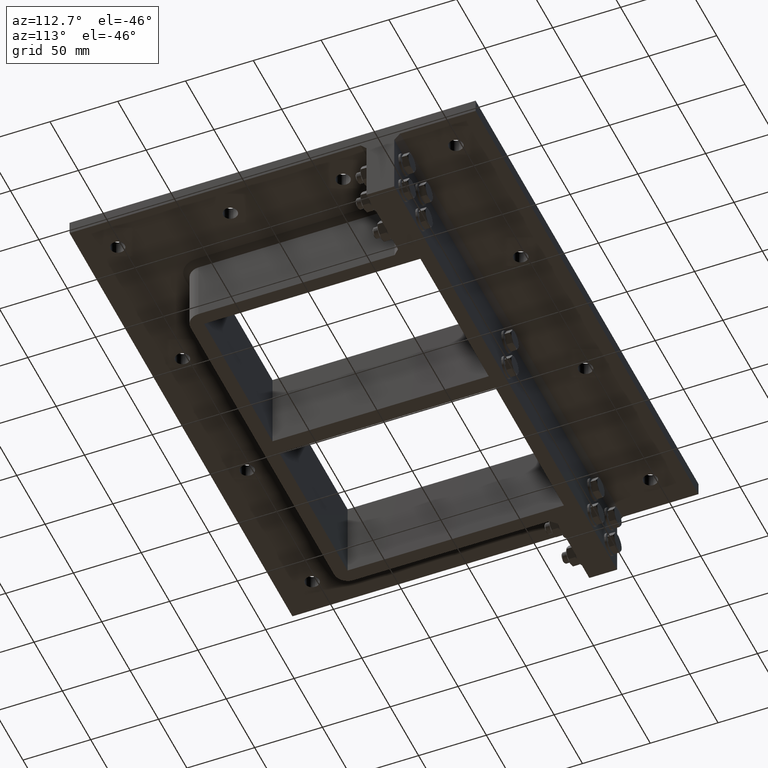
[diagram: clean part render]
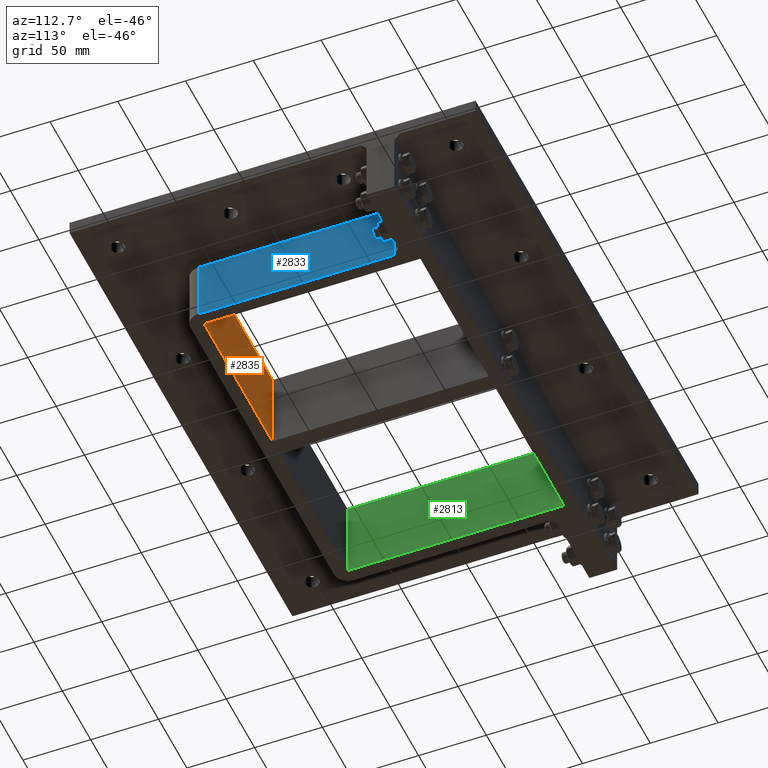
[diagram: same view with three faces highlighted in distinct colors, each labeled with its STEP entity id]
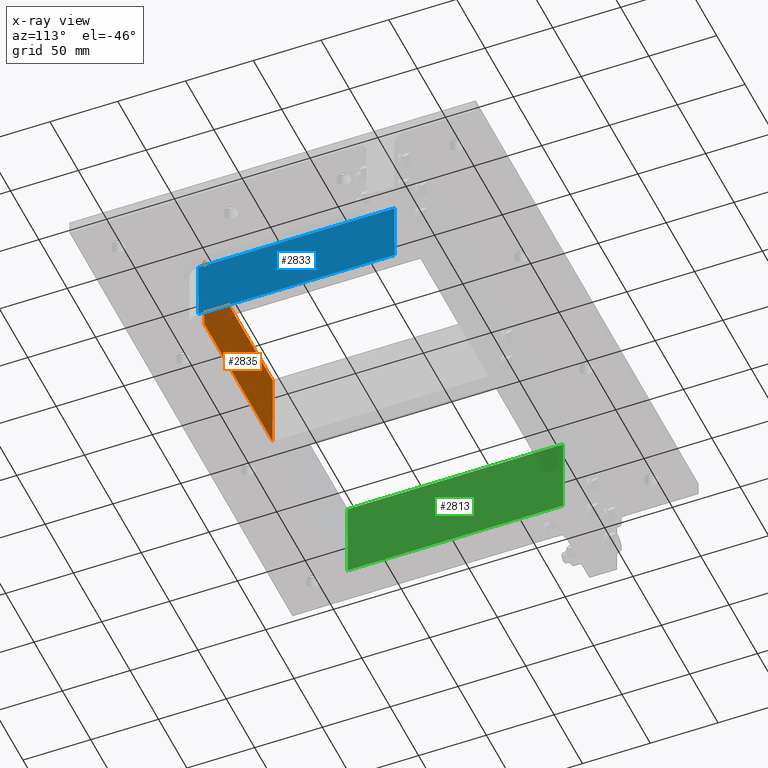
[diagram: x-ray of the same camera — body ghosted, the three highlighted faces saturated]
A machine part, auxiliary view with three faces highlighted in distinct colors.
The next image is the same camera in x-ray (body ghosted, the three faces saturated) — at least one of them is partly hidden behind the body in this view.
Their STEP definitions:

[orange] entity #2835 — the highlighted planar face has unit normal (0, -1, 0).
#506=FACE_OUTER_BOUND('',#699,.T.);
#699=EDGE_LOOP('',(#2195,#2196,#2197,#2198));
#929=LINE('',#4527,#1150);
#939=LINE('',#4548,#1160);
#945=LINE('',#4574,#1166);
#961=LINE('',#4607,#1182);
#1150=VECTOR('',#3667,10.);
#1160=VECTOR('',#3683,10.);
#1166=VECTOR('',#3707,10.);
#1182=VECTOR('',#3757,10.);
#1377=VERTEX_POINT('',#4524);
#1378=VERTEX_POINT('',#4526);
#1385=VERTEX_POINT('',#4545);
#1386=VERTEX_POINT('',#4547);
#1650=EDGE_CURVE('',#1377,#1378,#929,.T.);
#1662=EDGE_CURVE('',#1385,#1386,#939,.T.);
#1676=EDGE_CURVE('',#1385,#1378,#945,.T.);
#1692=EDGE_CURVE('',#1386,#1377,#961,.T.);
#2195=ORIENTED_EDGE('',*,*,#1650,.F.);
#2196=ORIENTED_EDGE('',*,*,#1692,.F.);
#2197=ORIENTED_EDGE('',*,*,#1662,.F.);
#2198=ORIENTED_EDGE('',*,*,#1676,.T.);
#2726=PLANE('',#3252);
#2835=ADVANCED_FACE('',(#506),#2726,.F.);
#3252=AXIS2_PLACEMENT_3D('',#4606,#3755,#3756);
#3667=DIRECTION('',(1.,1.47415505344419E-16,0.));
#3683=DIRECTION('',(-1.,-1.47415505344419E-16,0.));
#3707=DIRECTION('',(0.,0.,-1.));
#3755=DIRECTION('center_axis',(1.47415505344419E-16,-1.,0.));
#3756=DIRECTION('ref_axis',(-1.,-1.47415505344419E-16,0.));
#3757=DIRECTION('',(0.,0.,-1.));
#4524=CARTESIAN_POINT('',(6.00000000000001,-79.75,-60.));
#4526=CARTESIAN_POINT('',(126.5,-79.75,-60.));
#4527=CARTESIAN_POINT('',(63.25,-79.75,-60.));
#4545=CARTESIAN_POINT('',(126.5,-79.75,0.));
#4547=CARTESIAN_POINT('',(6.00000000000001,-79.75,0.));
#4548=CARTESIAN_POINT('',(63.25,-79.75,0.));
#4574=CARTESIAN_POINT('',(126.5,-79.75,0.));
#4606=CARTESIAN_POINT('Origin',(126.5,-79.75,0.));
#4607=CARTESIAN_POINT('',(6.00000000000001,-79.75,0.));

[blue] entity #2833 — the highlighted planar face has unit normal (1, 0, 0).
#504=FACE_OUTER_BOUND('',#697,.T.);
#697=EDGE_LOOP('',(#2187,#2188,#2189,#2190));
#879=LINE('',#4361,#1100);
#890=LINE('',#4389,#1111);
#932=LINE('',#4532,#1153);
#959=LINE('',#4603,#1180);
#1100=VECTOR('',#3503,10.);
#1111=VECTOR('',#3532,10.);
#1153=VECTOR('',#3670,10.);
#1180=VECTOR('',#3751,10.);
#1317=VERTEX_POINT('',#4354);
#1319=VERTEX_POINT('',#4359);
#1326=VERTEX_POINT('',#4385);
#1380=VERTEX_POINT('',#4531);
#1568=EDGE_CURVE('',#1319,#1317,#879,.T.);
#1583=EDGE_CURVE('',#1317,#1326,#890,.T.);
#1653=EDGE_CURVE('',#1326,#1380,#932,.T.);
#1690=EDGE_CURVE('',#1319,#1380,#959,.T.);
#2187=ORIENTED_EDGE('',*,*,#1568,.F.);
#2188=ORIENTED_EDGE('',*,*,#1690,.T.);
#2189=ORIENTED_EDGE('',*,*,#1653,.F.);
#2190=ORIENTED_EDGE('',*,*,#1583,.F.);
#2725=PLANE('',#3250);
#2833=ADVANCED_FACE('',(#504),#2725,.T.);
#3250=AXIS2_PLACEMENT_3D('',#4602,#3749,#3750);
#3503=DIRECTION('',(0.,1.,0.));
#3532=DIRECTION('',(0.,0.,-1.));
#3670=DIRECTION('',(0.,-1.,0.));
#3749=DIRECTION('center_axis',(1.,0.,0.));
#3750=DIRECTION('ref_axis',(0.,-1.,0.));
#3751=DIRECTION('',(0.,0.,-1.));
#4354=CARTESIAN_POINT('',(136.5,64.95,-14.3));
#4359=CARTESIAN_POINT('',(136.5,-79.75,-14.3));
#4361=CARTESIAN_POINT('',(136.5,39.875,-14.3));
#4385=CARTESIAN_POINT('',(136.5,64.95,-60.));
#4389=CARTESIAN_POINT('',(136.5,64.95,0.));
#4531=CARTESIAN_POINT('',(136.5,-79.75,-60.));
#4532=CARTESIAN_POINT('',(136.5,-79.75,-60.));
#4602=CARTESIAN_POINT('Origin',(136.5,79.75,0.));
#4603=CARTESIAN_POINT('',(136.5,-79.75,0.));

[green] entity #2813 — the highlighted planar face has unit normal (-1, -0, 0).
#484=FACE_OUTER_BOUND('',#659,.T.);
#659=EDGE_LOOP('',(#2059,#2060,#2061,#2062));
#913=LINE('',#4495,#1134);
#914=LINE('',#4497,#1135);
#915=LINE('',#4499,#1136);
#916=LINE('',#4500,#1137);
#1134=VECTOR('',#3645,10.);
#1135=VECTOR('',#3646,10.);
#1136=VECTOR('',#3647,10.);
#1137=VECTOR('',#3648,10.);
#1364=VERTEX_POINT('',#4493);
#1365=VERTEX_POINT('',#4494);
#1366=VERTEX_POINT('',#4496);
#1367=VERTEX_POINT('',#4498);
#1634=EDGE_CURVE('',#1364,#1365,#913,.T.);
#1635=EDGE_CURVE('',#1364,#1366,#914,.T.);
#1636=EDGE_CURVE('',#1367,#1366,#915,.T.);
#1637=EDGE_CURVE('',#1367,#1365,#916,.T.);
#2059=ORIENTED_EDGE('',*,*,#1634,.F.);
#2060=ORIENTED_EDGE('',*,*,#1635,.T.);
#2061=ORIENTED_EDGE('',*,*,#1636,.F.);
#2062=ORIENTED_EDGE('',*,*,#1637,.T.);
#2713=PLANE('',#3220);
#2813=ADVANCED_FACE('',(#484),#2713,.F.);
#3220=AXIS2_PLACEMENT_3D('',#4492,#3643,#3644);
#3643=DIRECTION('center_axis',(-1.,-3.34111004275909E-16,0.));
#3644=DIRECTION('ref_axis',(-3.34111004275909E-16,1.,0.));
#3645=DIRECTION('',(-3.34111004275909E-16,1.,0.));
#3646=DIRECTION('',(0.,0.,-1.));
#3647=DIRECTION('',(3.34111004275909E-16,-1.,0.));
#3648=DIRECTION('',(0.,0.,1.));
#4492=CARTESIAN_POINT('Origin',(-126.5,-79.75,0.));
#4493=CARTESIAN_POINT('',(-126.5,-79.75,0.));
#4494=CARTESIAN_POINT('',(-126.5,79.25,0.));
#4495=CARTESIAN_POINT('',(-126.5,-39.875,0.));
#4496=CARTESIAN_POINT('',(-126.5,-79.75,-60.));
#4497=CARTESIAN_POINT('',(-126.5,-79.75,0.));
#4498=CARTESIAN_POINT('',(-126.5,79.25,-60.));
#4499=CARTESIAN_POINT('',(-126.5,-39.875,-60.));
#4500=CARTESIAN_POINT('',(-126.5,79.25,0.));